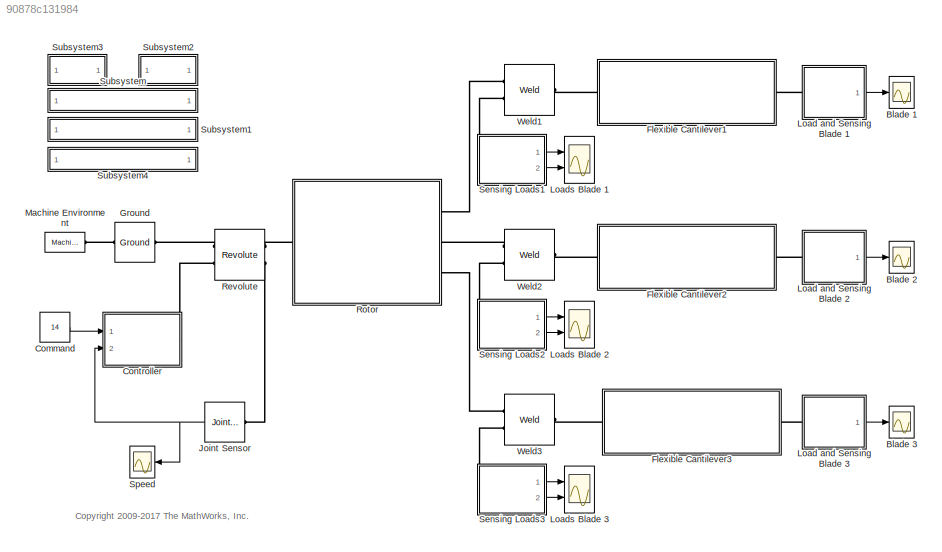
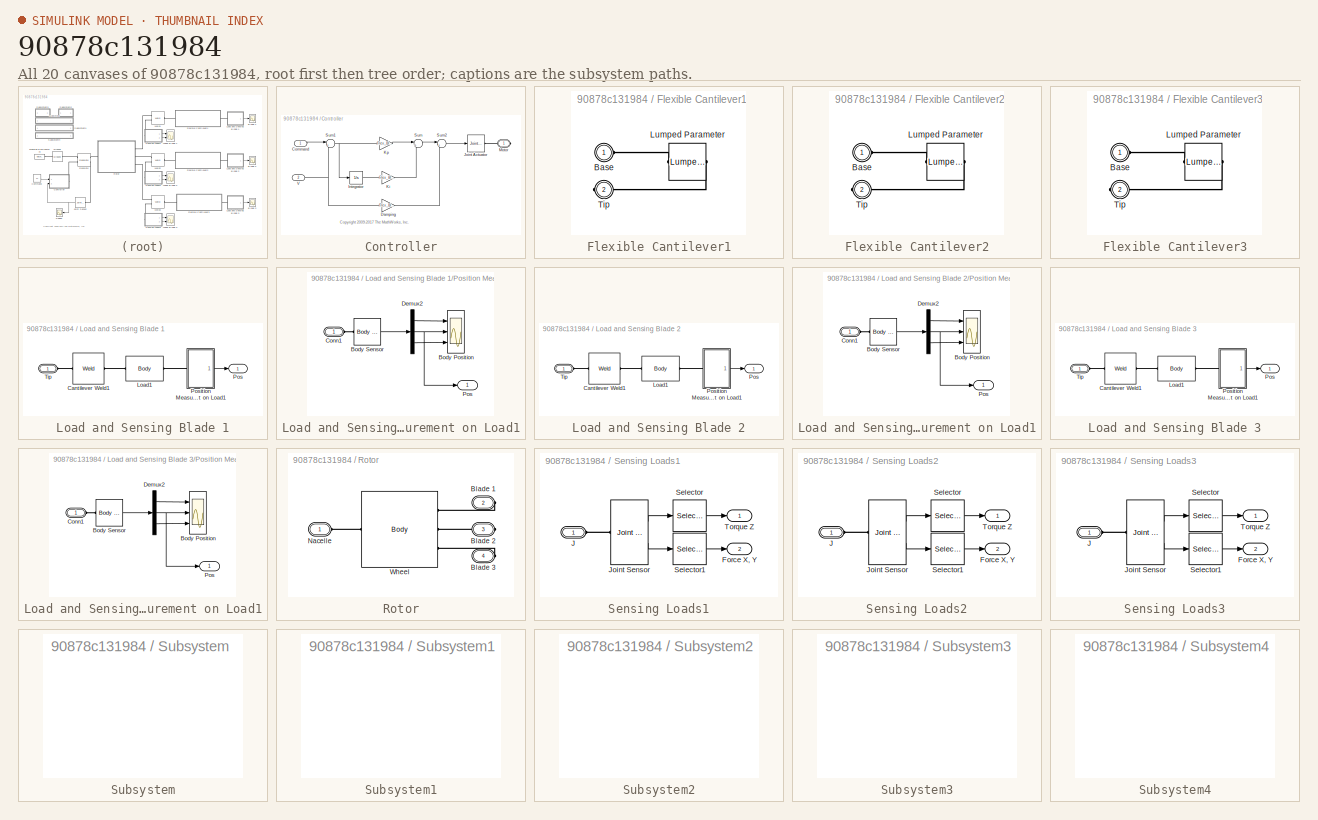
[diagram: thumbnail index - all 20 canvases of the model, root first then tree order]
MODEL slx_90878c131984
KIND model
CONFIG AbsTol = auto
CONFIG EnableMultiTasking = on
CONFIG FixedStep = auto
CONFIG InitFcn = cantilever1=cantilever_aluminum;\nload1.mass = 20 ; %kg\nload1.inertia = eye(3) ; % assume point mass\nload2=load1;\nload2.angle = 35 * pi / 180;
CONFIG MaxStep = auto
CONFIG MinStep = auto
CONFIG PostLoadFcn = loadMass = 20; %kg
CONFIG PreLoadFcn = load ss_cantilever_pva.mat\nwarning('off','Simulink:SL_SaveWithParameterizedLinks_Warning');\n\n
CONFIG RelTol = 1e-5
CONFIG SampleTimeConstraint = Unconstrained
CONFIG Solver = ode15s
CONFIG SolverName = ode15s
CONFIG StartTime = 0.0
CONFIG StopTime = 10
BLOCK [Scope] Blade 1
  Floating = off
  NumInputPorts = 1
  Ports = [1]
  ScopeSpecificationString = C++SS(StrPVP('Location','[15, 605, 507, 859]'),StrPVP('Open','off'),StrPVP('ZoomMode','xonly'),MxPVP('AxesTitles',54,'struct(''axes1'',''%<SignalLabel>'')'),StrPVP('TimeRange','10'),StrPVP('YMin','-0.6'),StrPVP('YMax','0.6'),StrPVP('SaveToWorkspace','on'),StrPVP('SaveName','Flex_Beam_Tip_DATA1'),StrPVP('DataFormat','StructureWithTime'),StrPVP('LimitDataPoints','off'),StrPVP('BlockParamSampleTime',...<+464ch>
BLOCK [Scope] Blade 2
  Floating = off
  NumInputPorts = 1
  Ports = [1]
  ScopeSpecificationString = C++SS(StrPVP('Location','[15, 605, 507, 859]'),StrPVP('Open','off'),StrPVP('ZoomMode','xonly'),MxPVP('AxesTitles',54,'struct(''axes1'',''%<SignalLabel>'')'),StrPVP('TimeRange','10'),StrPVP('YMin','-0.6'),StrPVP('YMax','0.6'),StrPVP('SaveToWorkspace','on'),StrPVP('SaveName','Flex_Beam_Tip_DATA'),StrPVP('DataFormat','StructureWithTime'),StrPVP('LimitDataPoints','off'),StrPVP('BlockParamSampleTime','...<+463ch>
BLOCK [Scope] Blade 3
  Floating = off
  NumInputPorts = 1
  Ports = [1]
  ScopeSpecificationString = C++SS(StrPVP('Location','[15, 605, 507, 859]'),StrPVP('Open','off'),StrPVP('ZoomMode','xonly'),MxPVP('AxesTitles',54,'struct(''axes1'',''%<SignalLabel>'')'),StrPVP('TimeRange','10'),StrPVP('YMin','-0.6'),StrPVP('YMax','0.6'),StrPVP('SaveToWorkspace','on'),StrPVP('SaveName','Flex_Beam_Tip_DATA2'),StrPVP('DataFormat','StructureWithTime'),StrPVP('LimitDataPoints','off'),StrPVP('BlockParamSampleTime',...<+464ch>
BLOCK [Constant] Command
  Value = 14
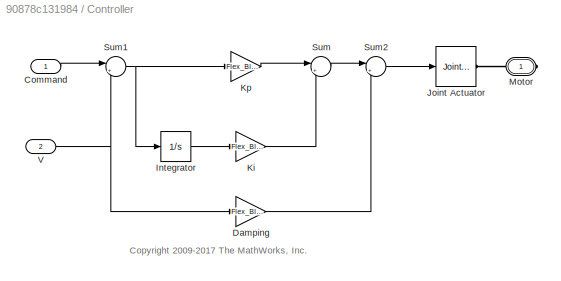
BLOCK [SubSystem] Controller
  Ports = [2, 0, 0, 0, 0, 0, 1]
  RequestExecContextInheritance = off
BLOCK [Inport] Controller/Command
  IconDisplay = Port number
BLOCK [Gain] Controller/Damping
  Gain = Flex_Blade.Damping
  OutDataTypeStr = Inherit: Inherit via internal rule
  ParamDataTypeStr = Inherit: Inherit via internal rule
  SaturateOnIntegerOverflow = off
BLOCK [Integrator] Controller/Integrator
  Ports = [1, 1]
BLOCK [Reference] Controller/Joint Actuator  REF=mblibv1/Sensors & 
Actuators/Joint Actuator
  Ports = [1, 0, 0, 0, 0, 0, 1]
  SourceBlock = mblibv1/Sensors & \nActuators/Joint Actuator
  SourceProductBaseCode = MS
  SourceProductName = Simscape Multibody
  SourceType = Joint Actuator
BLOCK [Gain] Controller/Ki
  Gain = Flex_Blade.Ki
  OutDataTypeStr = Inherit: Inherit via internal rule
  ParamDataTypeStr = Inherit: Inherit via internal rule
  SaturateOnIntegerOverflow = off
BLOCK [Gain] Controller/Kp
  Gain = Flex_Blade.Kp
  OutDataTypeStr = Inherit: Inherit via internal rule
  ParamDataTypeStr = Inherit: Inherit via internal rule
  SaturateOnIntegerOverflow = off
BLOCK [PMIOPort] Controller/Motor
  Side = Right
  Tag = PMCPort
BLOCK [Sum] Controller/Sum
  IconShape = round
  InputSameDT = off
  Inputs = |++
  OutDataTypeStr = Inherit: Inherit via internal rule
  Ports = [2, 1]
  SaturateOnIntegerOverflow = off
BLOCK [Sum] Controller/Sum1
  IconShape = round
  InputSameDT = off
  Inputs = |+-
  OutDataTypeStr = Inherit: Inherit via internal rule
  Ports = [2, 1]
  SaturateOnIntegerOverflow = off
BLOCK [Sum] Controller/Sum2
  IconShape = round
  InputSameDT = off
  Inputs = |+-
  OutDataTypeStr = Inherit: Inherit via internal rule
  Ports = [2, 1]
  SaturateOnIntegerOverflow = off
BLOCK [Inport] Controller/V
  IconDisplay = Port number
  Port = 2
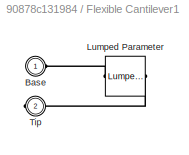
BLOCK [SubSystem] Flexible Cantilever1
  AttributesFormatString = %<BlockChoice>
  BlockChoice = Lumped Parameter
  MemberBlocks = FEA Modes,Lumped Parameter
  Ports = [0, 0, 0, 0, 0, 1, 1]
  RequestExecContextInheritance = off
  TemplateBlock = Flex_Cantilever_Lib/Flexible Cantilever
BLOCK [PMIOPort] Flexible Cantilever1/Base
  Side = Left
BLOCK [Reference] Flexible Cantilever1/Lumped Parameter  REF=Flex_Cantilever_Lib/Lumped Parameter
  Ports = [0, 0, 0, 0, 0, 1, 1]
  SourceBlock = Flex_Cantilever_Lib/Lumped Parameter
  SourceType = Unknown
BLOCK [PMIOPort] Flexible Cantilever1/Tip
  Port = 2
  Side = Right
BLOCK [SubSystem] Flexible Cantilever2
  AttributesFormatString = %<BlockChoice>
  BlockChoice = Lumped Parameter
  MemberBlocks = FEA Modes,Lumped Parameter
  Ports = [0, 0, 0, 0, 0, 1, 1]
  RequestExecContextInheritance = off
  TemplateBlock = Flex_Cantilever_Lib/Flexible Cantilever
BLOCK [PMIOPort] Flexible Cantilever2/Base
  Side = Left
BLOCK [Reference] Flexible Cantilever2/Lumped Parameter  REF=Flex_Cantilever_Lib/Lumped Parameter
  Ports = [0, 0, 0, 0, 0, 1, 1]
  SourceBlock = Flex_Cantilever_Lib/Lumped Parameter
  SourceType = Unknown
BLOCK [PMIOPort] Flexible Cantilever2/Tip
  Port = 2
  Side = Right
BLOCK [SubSystem] Flexible Cantilever3
  AttributesFormatString = %<BlockChoice>
  BlockChoice = Lumped Parameter
  MemberBlocks = FEA Modes,Lumped Parameter
  Ports = [0, 0, 0, 0, 0, 1, 1]
  RequestExecContextInheritance = off
  TemplateBlock = Flex_Cantilever_Lib/Flexible Cantilever
BLOCK [PMIOPort] Flexible Cantilever3/Base
  Side = Left
BLOCK [Reference] Flexible Cantilever3/Lumped Parameter  REF=Flex_Cantilever_Lib/Lumped Parameter
  Ports = [0, 0, 0, 0, 0, 1, 1]
  SourceBlock = Flex_Cantilever_Lib/Lumped Parameter
  SourceType = Unknown
BLOCK [PMIOPort] Flexible Cantilever3/Tip
  Port = 2
  Side = Right
BLOCK [Reference] Ground  REF=mblibv1/Bodies/Ground
  Ports = [0, 0, 0, 0, 0, 1, 1]
  SourceBlock = mblibv1/Bodies/Ground
  SourceProductBaseCode = MS
  SourceProductName = Simscape Multibody
  SourceType = Ground
  UserDataPersistent = on
BLOCK [Reference] Joint Sensor  REF=mblibv1/Sensors & 
Actuators/Joint Sensor
  Ports = [0, 1, 0, 0, 0, 1]
  SourceBlock = mblibv1/Sensors & \nActuators/Joint Sensor
  SourceProductBaseCode = MS
  SourceProductName = Simscape Multibody
  SourceType = Joint Sensor
BLOCK [SubSystem] Load and Sensing Blade 1
  Ports = [0, 1, 0, 0, 0, 1]
  RequestExecContextInheritance = off
BLOCK [Reference] Load and Sensing Blade 1/Cantilever Weld1  REF=mblibv1/Joints/Weld
  Ports = [0, 0, 0, 0, 0, 1, 1]
  SourceBlock = mblibv1/Joints/Weld
  SourceProductBaseCode = MS
  SourceProductName = Simscape Multibody
  SourceType = Weld
BLOCK [Reference] Load and Sensing Blade 1/Load1  REF=mblibv1/Bodies/Body
  Ports = [0, 0, 0, 0, 0, 1, 1]
  SourceBlock = mblibv1/Bodies/Body
  SourceProductBaseCode = MS
  SourceProductName = Simscape Multibody
  SourceType = Body
BLOCK [Outport] Load and Sensing Blade 1/Pos
  IconDisplay = Port number
BLOCK [SubSystem] Load and Sensing Blade 1/Position Measurement on Load1
  Ports = [0, 1, 0, 0, 0, 1]
  RequestExecContextInheritance = off
BLOCK [Scope] Load and Sensing Blade 1/Position Measurement on Load1/Body Position
  Floating = off
  NumInputPorts = 3
  Ports = [3]
  ScopeSpecificationString = C++SS(StrPVP('Location','[6, 50, 1020, 709]'),StrPVP('Open','off'),StrPVP('ZoomMode','xonly'),MxPVP('AxesTitles',54,'struct(''axes1'',''%<SignalLabel>'',''axes2'',''%<SignalLabel>'',''axes3'',''%<SignalLabel>'')'),StrPVP('TimeRange','0.3'),StrPVP('YMin','0.599997~-0.0065~-1'),StrPVP('YMax','0.6~0~1'),StrPVP('SaveName','ScopeData2'),StrPVP('DataFormat','StructureWithTime'),StrPVP('LimitDataPoints',...<+501ch>  <repeated x3 — deduplicated; at blocks: Body Position>
BLOCK [Reference] Load and Sensing Blade 1/Position Measurement on Load1/Body Sensor  REF=mblibv1/Sensors & 
Actuators/Body Sensor
  Ports = [0, 1, 0, 0, 0, 1]
  SourceBlock = mblibv1/Sensors & \nActuators/Body Sensor
  SourceProductBaseCode = MS
  SourceProductName = Simscape Multibody
  SourceType = Body Sensor
BLOCK [PMIOPort] Load and Sensing Blade 1/Position Measurement on Load1/Conn1
  Side = Left
BLOCK [Demux] Load and Sensing Blade 1/Position Measurement on Load1/Demux2
  DisplayOption = bar
  Outputs = 3
  Ports = [1, 3]
BLOCK [Outport] Load and Sensing Blade 1/Position Measurement on Load1/Pos
  IconDisplay = Port number
BLOCK [PMIOPort] Load and Sensing Blade 1/Tip
  Side = Left
BLOCK [SubSystem] Load and Sensing Blade 2
  Ports = [0, 1, 0, 0, 0, 1]
  RequestExecContextInheritance = off
BLOCK [Reference] Load and Sensing Blade 2/Cantilever Weld1  REF=mblibv1/Joints/Weld
  Ports = [0, 0, 0, 0, 0, 1, 1]
  SourceBlock = mblibv1/Joints/Weld
  SourceProductBaseCode = MS
  SourceProductName = Simscape Multibody
  SourceType = Weld
BLOCK [Reference] Load and Sensing Blade 2/Load1  REF=mblibv1/Bodies/Body
  Ports = [0, 0, 0, 0, 0, 1, 1]
  SourceBlock = mblibv1/Bodies/Body
  SourceProductBaseCode = MS
  SourceProductName = Simscape Multibody
  SourceType = Body
BLOCK [Outport] Load and Sensing Blade 2/Pos
  IconDisplay = Port number
BLOCK [SubSystem] Load and Sensing Blade 2/Position Measurement on Load1
  Ports = [0, 1, 0, 0, 0, 1]
  RequestExecContextInheritance = off
BLOCK [Scope] Load and Sensing Blade 2/Position Measurement on Load1/Body Position
  Floating = off
  NumInputPorts = 3
  Ports = [3]
BLOCK [Reference] Load and Sensing Blade 2/Position Measurement on Load1/Body Sensor  REF=mblibv1/Sensors & 
Actuators/Body Sensor
  Ports = [0, 1, 0, 0, 0, 1]
  SourceBlock = mblibv1/Sensors & \nActuators/Body Sensor
  SourceProductBaseCode = MS
  SourceProductName = Simscape Multibody
  SourceType = Body Sensor
BLOCK [PMIOPort] Load and Sensing Blade 2/Position Measurement on Load1/Conn1
  Side = Left
BLOCK [Demux] Load and Sensing Blade 2/Position Measurement on Load1/Demux2
  DisplayOption = bar
  Outputs = 3
  Ports = [1, 3]
BLOCK [Outport] Load and Sensing Blade 2/Position Measurement on Load1/Pos
  IconDisplay = Port number
BLOCK [PMIOPort] Load and Sensing Blade 2/Tip
  Side = Left
BLOCK [SubSystem] Load and Sensing Blade 3
  Ports = [0, 1, 0, 0, 0, 1]
  RequestExecContextInheritance = off
BLOCK [Reference] Load and Sensing Blade 3/Cantilever Weld1  REF=mblibv1/Joints/Weld
  Ports = [0, 0, 0, 0, 0, 1, 1]
  SourceBlock = mblibv1/Joints/Weld
  SourceProductBaseCode = MS
  SourceProductName = Simscape Multibody
  SourceType = Weld
BLOCK [Reference] Load and Sensing Blade 3/Load1  REF=mblibv1/Bodies/Body
  Ports = [0, 0, 0, 0, 0, 1, 1]
  SourceBlock = mblibv1/Bodies/Body
  SourceProductBaseCode = MS
  SourceProductName = Simscape Multibody
  SourceType = Body
BLOCK [Outport] Load and Sensing Blade 3/Pos
  IconDisplay = Port number
BLOCK [SubSystem] Load and Sensing Blade 3/Position Measurement on Load1
  Ports = [0, 1, 0, 0, 0, 1]
  RequestExecContextInheritance = off
BLOCK [Scope] Load and Sensing Blade 3/Position Measurement on Load1/Body Position
  Floating = off
  NumInputPorts = 3
  Ports = [3]
BLOCK [Reference] Load and Sensing Blade 3/Position Measurement on Load1/Body Sensor  REF=mblibv1/Sensors & 
Actuators/Body Sensor
  Ports = [0, 1, 0, 0, 0, 1]
  SourceBlock = mblibv1/Sensors & \nActuators/Body Sensor
  SourceProductBaseCode = MS
  SourceProductName = Simscape Multibody
  SourceType = Body Sensor
BLOCK [PMIOPort] Load and Sensing Blade 3/Position Measurement on Load1/Conn1
  Side = Left
BLOCK [Demux] Load and Sensing Blade 3/Position Measurement on Load1/Demux2
  DisplayOption = bar
  Outputs = 3
  Ports = [1, 3]
BLOCK [Outport] Load and Sensing Blade 3/Position Measurement on Load1/Pos
  IconDisplay = Port number
BLOCK [PMIOPort] Load and Sensing Blade 3/Tip
  Side = Left
BLOCK [Scope] Loads Blade 1
  Floating = off
  NumInputPorts = 2
  Ports = [2]
  ScopeSpecificationString = Simulink.scopes.TimeScopeBlockCfg('CurrentConfiguration', extmgr.ConfigurationSet(extmgr.Configuration('Core','General UI',true),extmgr.Configuration('Core','Source UI',true),extmgr.Configuration('Sources','WiredSimulink',true,'DataLogging',true,'DataLoggingVariableName','Flexible_Blade1_Load_DATA','DataLoggingSaveFormat','StructureWithTime','DataLoggingDecimation','1'),extmgr.Configuration('Visua...<+2417ch>
BLOCK [Scope] Loads Blade 2
  Floating = off
  NumInputPorts = 2
  Ports = [2]
  ScopeSpecificationString = C++SS(StrPVP('Location','[392, 603, 716, 859]'),StrPVP('Open','off'),StrPVP('ZoomMode','yonly'),MxPVP('AxesTitles',54,'struct(''axes1'',''%<SignalLabel>'',''axes2'',''%<SignalLabel>'')'),StrPVP('YMin','-400~-500'),StrPVP('YMax','200~200'),StrPVP('SaveName','ScopeData1'),StrPVP('DataFormat','StructureWithTime'),StrPVP('BlockParamSampleTime','0'),StrPVP('LimitDataPoints','on'),StrPVP('DataLoggingDec...<+437ch>
BLOCK [Scope] Loads Blade 3
  Floating = off
  NumInputPorts = 2
  Ports = [2]
  ScopeSpecificationString = C++SS(StrPVP('Location','[392, 603, 716, 859]'),StrPVP('Open','off'),StrPVP('ZoomMode','yonly'),MxPVP('AxesTitles',54,'struct(''axes1'',''%<SignalLabel>'',''axes2'',''%<SignalLabel>'')'),StrPVP('YMin','-400~-500'),StrPVP('YMax','200~200'),StrPVP('SaveName','ScopeData3'),StrPVP('DataFormat','StructureWithTime'),StrPVP('BlockParamSampleTime','0'),StrPVP('LimitDataPoints','on'),StrPVP('DataLoggingDec...<+437ch>
BLOCK [Reference] Machine Environment  REF=mblibv1/Bodies/Machine
Environment
  Ports = [0, 0, 0, 0, 0, 0, 1]
  SourceBlock = mblibv1/Bodies/Machine\nEnvironment
  SourceProductBaseCode = MS
  SourceProductName = Simscape Multibody
  SourceType = Machine Environment
  Tag = Factory ground
BLOCK [Reference] Revolute  REF=mblibv1/Joints/Revolute
  Ports = [0, 0, 0, 0, 0, 2, 2]
  SourceBlock = mblibv1/Joints/Revolute
  SourceProductBaseCode = MS
  SourceProductName = Simscape Multibody
  SourceType = Revolute
BLOCK [SubSystem] Rotor
  Ports = [0, 0, 0, 0, 0, 1, 3]
  RequestExecContextInheritance = off
BLOCK [PMIOPort] Rotor/ Nacelle
  Side = Left
  Tag = PMCPort
BLOCK [PMIOPort] Rotor/Blade 1
  Port = 2
  Side = Right
  Tag = PMCPort
BLOCK [PMIOPort] Rotor/Blade 2
  Port = 3
  Side = Right
  Tag = PMCPort
BLOCK [PMIOPort] Rotor/Blade 3
  Port = 4
  Side = Right
  Tag = PMCPort
BLOCK [Reference] Rotor/Wheel  REF=mblibv1/Bodies/Body
  Ports = [0, 0, 0, 0, 0, 1, 3]
  SourceBlock = mblibv1/Bodies/Body
  SourceProductBaseCode = MS
  SourceProductName = Simscape Multibody
  SourceType = Body
BLOCK [SubSystem] Sensing Loads1
  Ports = [0, 2, 0, 0, 0, 1]
  RequestExecContextInheritance = off
BLOCK [Outport] Sensing Loads1/Force X, Y
  IconDisplay = Port number
  Port = 2
BLOCK [PMIOPort] Sensing Loads1/J
  Side = Left
BLOCK [Reference] Sensing Loads1/Joint Sensor  REF=mblibv1/Sensors & 
Actuators/Joint Sensor
  Ports = [0, 2, 0, 0, 0, 1]
  SourceBlock = mblibv1/Sensors & \nActuators/Joint Sensor
  SourceProductBaseCode = MS
  SourceProductName = Simscape Multibody
  SourceType = Joint Sensor
BLOCK [Selector] Sensing Loads1/Selector
  IndexOptions = Index vector (dialog)
  Indices = [3]
  InputPortWidth = 3
  OutputSizes = 1
  Ports = [1, 1]
BLOCK [Selector] Sensing Loads1/Selector1
  IndexOptions = Index vector (dialog)
  Indices = [1 2]
  InputPortWidth = 3
  OutputSizes = 1
  Ports = [1, 1]
BLOCK [Outport] Sensing Loads1/Torque Z
  IconDisplay = Port number
BLOCK [SubSystem] Sensing Loads2
  Ports = [0, 2, 0, 0, 0, 1]
  RequestExecContextInheritance = off
BLOCK [Outport] Sensing Loads2/Force X, Y
  IconDisplay = Port number
  Port = 2
BLOCK [PMIOPort] Sensing Loads2/J
  Side = Left
BLOCK [Reference] Sensing Loads2/Joint Sensor  REF=mblibv1/Sensors & 
Actuators/Joint Sensor
  Ports = [0, 2, 0, 0, 0, 1]
  SourceBlock = mblibv1/Sensors & \nActuators/Joint Sensor
  SourceProductBaseCode = MS
  SourceProductName = Simscape Multibody
  SourceType = Joint Sensor
BLOCK [Selector] Sensing Loads2/Selector
  IndexOptions = Index vector (dialog)
  Indices = [3]
  InputPortWidth = 3
  OutputSizes = 1
  Ports = [1, 1]
BLOCK [Selector] Sensing Loads2/Selector1
  IndexOptions = Index vector (dialog)
  Indices = [1 2]
  InputPortWidth = 3
  OutputSizes = 1
  Ports = [1, 1]
BLOCK [Outport] Sensing Loads2/Torque Z
  IconDisplay = Port number
BLOCK [SubSystem] Sensing Loads3
  Ports = [0, 2, 0, 0, 0, 1]
  RequestExecContextInheritance = off
BLOCK [Outport] Sensing Loads3/Force X, Y
  IconDisplay = Port number
  Port = 2
BLOCK [PMIOPort] Sensing Loads3/J
  Side = Left
BLOCK [Reference] Sensing Loads3/Joint Sensor  REF=mblibv1/Sensors & 
Actuators/Joint Sensor
  Ports = [0, 2, 0, 0, 0, 1]
  SourceBlock = mblibv1/Sensors & \nActuators/Joint Sensor
  SourceProductBaseCode = MS
  SourceProductName = Simscape Multibody
  SourceType = Joint Sensor
BLOCK [Selector] Sensing Loads3/Selector
  IndexOptions = Index vector (dialog)
  Indices = [3]
  InputPortWidth = 3
  OutputSizes = 1
  Ports = [1, 1]
BLOCK [Selector] Sensing Loads3/Selector1
  IndexOptions = Index vector (dialog)
  Indices = [1 2]
  InputPortWidth = 3
  OutputSizes = 1
  Ports = [1, 1]
BLOCK [Outport] Sensing Loads3/Torque Z
  IconDisplay = Port number
BLOCK [Scope] Speed
  Floating = off
  NumInputPorts = 1
  Ports = [1]
  ScopeSpecificationString = Simulink.scopes.TimeScopeBlockCfg('CurrentConfiguration', extmgr.ConfigurationSet(extmgr.Configuration('Core','General UI',true),extmgr.Configuration('Core','Source UI',true),extmgr.Configuration('Sources','WiredSimulink',true,'DataLogging',true,'DataLoggingVariableName','Flexible_Blade_Rotor_Speed_DATA','DataLoggingSaveFormat','StructureWithTime','DataLoggingDecimation','1'),extmgr.Configuration(...<+1693ch>
BLOCK [SubSystem] Subsystem
  OpenFcn = Change_Flex_Body_To_FEA_Approach;
  Ports = []
  RequestExecContextInheritance = off
BLOCK [SubSystem] Subsystem1
  OpenFcn = Change_Flex_Body_To_Lumped_Parameter;
  Ports = []
  RequestExecContextInheritance = off
BLOCK [SubSystem] Subsystem2
  OpenFcn = Temp_ENVHa= get_param(find_system(gcs,'LookUnderMasks','all','FollowLinks','on','ClassName','Environment'),'handle');\n                                                                                                                     \nset_param(Temp_ENVHa{1},'VisualizeMachine','off');                                                                   \n                                              ...<+231ch>
  Ports = []
  RequestExecContextInheritance = off
BLOCK [SubSystem] Subsystem3
  OpenFcn = Temp_ENVHa= get_param(find_system(gcs,'LookUnderMasks','all','FollowLinks','on','ClassName','Environment'),'handle');\n                                                                                                                     \nset_param(Temp_ENVHa{1},'VisualizeMachine','on');                                                                    \nclear Temp_ENVHa;                             ...<+230ch>
  Ports = []
  RequestExecContextInheritance = off
BLOCK [SubSystem] Subsystem4
  OpenFcn = Flexible_Blades_Slide_Prep;
  Ports = []
  RequestExecContextInheritance = off
BLOCK [Reference] Weld1  REF=mblibv1/Joints/Weld
  Ports = [0, 0, 0, 0, 0, 2, 1]
  SourceBlock = mblibv1/Joints/Weld
  SourceProductBaseCode = MS
  SourceProductName = Simscape Multibody
  SourceType = Weld
BLOCK [Reference] Weld2  REF=mblibv1/Joints/Weld
  Ports = [0, 0, 0, 0, 0, 2, 1]
  SourceBlock = mblibv1/Joints/Weld
  SourceProductBaseCode = MS
  SourceProductName = Simscape Multibody
  SourceType = Weld
BLOCK [Reference] Weld3  REF=mblibv1/Joints/Weld
  Ports = [0, 0, 0, 0, 0, 2, 1]
  SourceBlock = mblibv1/Joints/Weld
  SourceProductBaseCode = MS
  SourceProductName = Simscape Multibody
  SourceType = Weld
ANNOTATION (root): <copyright redacted>
ANNOTATION Controller: <copyright redacted>
LINE Command:1 -> Controller:1
LINE Controller/Command:1 -> Controller/Sum1:1
LINE Controller/Damping:1 -> Controller/Sum2:2
LINE Controller/Integrator:1 -> Controller/Ki:1
LINE Controller/Ki:1 -> Controller/Sum:2
LINE Controller/Kp:1 -> Controller/Sum:1
NET Controller/Sum1:1 -> Controller/Integrator:1, Controller/Kp:1
LINE Controller/Sum2:1 -> Controller/Joint Actuator:1
LINE Controller/Sum:1 -> Controller/Sum2:1
NET Controller/V:1 -> Controller/Damping:1, Controller/Sum1:2
NET Joint Sensor:1 -> Controller:2, Speed:1
LINE Load and Sensing Blade 1/Position Measurement on Load1/Body Sensor:1 -> Load and Sensing Blade 1/Position Measurement on Load1/Demux2:1
LINE Load and Sensing Blade 1/Position Measurement on Load1/Demux2:1 -> Load and Sensing Blade 1/Position Measurement on Load1/Body Position:1
NET Load and Sensing Blade 1/Position Measurement on Load1/Demux2:2 -> Load and Sensing Blade 1/Position Measurement on Load1/Body Position:2, Load and Sensing Blade 1/Position Measurement on Load1/Pos:1
LINE Load and Sensing Blade 1/Position Measurement on Load1/Demux2:3 -> Load and Sensing Blade 1/Position Measurement on Load1/Body Position:3
LINE Load and Sensing Blade 1/Position Measurement on Load1:1 -> Load and Sensing Blade 1/Pos:1
LINE Load and Sensing Blade 1:1 -> Blade 1:1
LINE Load and Sensing Blade 2/Position Measurement on Load1/Body Sensor:1 -> Load and Sensing Blade 2/Position Measurement on Load1/Demux2:1
LINE Load and Sensing Blade 2/Position Measurement on Load1/Demux2:1 -> Load and Sensing Blade 2/Position Measurement on Load1/Body Position:1
NET Load and Sensing Blade 2/Position Measurement on Load1/Demux2:2 -> Load and Sensing Blade 2/Position Measurement on Load1/Body Position:2, Load and Sensing Blade 2/Position Measurement on Load1/Pos:1
LINE Load and Sensing Blade 2/Position Measurement on Load1/Demux2:3 -> Load and Sensing Blade 2/Position Measurement on Load1/Body Position:3
LINE Load and Sensing Blade 2/Position Measurement on Load1:1 -> Load and Sensing Blade 2/Pos:1
LINE Load and Sensing Blade 2:1 -> Blade 2:1
LINE Load and Sensing Blade 3/Position Measurement on Load1/Body Sensor:1 -> Load and Sensing Blade 3/Position Measurement on Load1/Demux2:1
LINE Load and Sensing Blade 3/Position Measurement on Load1/Demux2:1 -> Load and Sensing Blade 3/Position Measurement on Load1/Body Position:1
NET Load and Sensing Blade 3/Position Measurement on Load1/Demux2:2 -> Load and Sensing Blade 3/Position Measurement on Load1/Body Position:2, Load and Sensing Blade 3/Position Measurement on Load1/Pos:1
LINE Load and Sensing Blade 3/Position Measurement on Load1/Demux2:3 -> Load and Sensing Blade 3/Position Measurement on Load1/Body Position:3
LINE Load and Sensing Blade 3/Position Measurement on Load1:1 -> Load and Sensing Blade 3/Pos:1
LINE Load and Sensing Blade 3:1 -> Blade 3:1
LINE Sensing Loads1/Joint Sensor:1 -> Sensing Loads1/Selector:1
LINE Sensing Loads1/Joint Sensor:2 -> Sensing Loads1/Selector1:1
LINE Sensing Loads1/Selector1:1 -> Sensing Loads1/Force X, Y:1
LINE Sensing Loads1/Selector:1 -> Sensing Loads1/Torque Z:1
LINE Sensing Loads1:1 -> Loads Blade 1:1
LINE Sensing Loads1:2 -> Loads Blade 1:2
LINE Sensing Loads2/Joint Sensor:1 -> Sensing Loads2/Selector:1
LINE Sensing Loads2/Joint Sensor:2 -> Sensing Loads2/Selector1:1
LINE Sensing Loads2/Selector1:1 -> Sensing Loads2/Force X, Y:1
LINE Sensing Loads2/Selector:1 -> Sensing Loads2/Torque Z:1
LINE Sensing Loads2:1 -> Loads Blade 2:1
LINE Sensing Loads2:2 -> Loads Blade 2:2
LINE Sensing Loads3/Joint Sensor:1 -> Sensing Loads3/Selector:1
LINE Sensing Loads3/Joint Sensor:2 -> Sensing Loads3/Selector1:1
LINE Sensing Loads3/Selector1:1 -> Sensing Loads3/Force X, Y:1
LINE Sensing Loads3/Selector:1 -> Sensing Loads3/Torque Z:1
LINE Sensing Loads3:1 -> Loads Blade 3:1
LINE Sensing Loads3:2 -> Loads Blade 3:2
PLINE Controller/Joint Actuator:RConn1 -- Controller/Motor:RConn1
PLINE Controller:RConn1 -- Revolute:LConn2
PLINE Flexible Cantilever1:LConn1 -- Weld1:RConn1
PLINE Flexible Cantilever1:RConn1 -- Load and Sensing Blade 1:LConn1
PLINE Flexible Cantilever2:LConn1 -- Weld2:RConn1
PLINE Flexible Cantilever2:RConn1 -- Load and Sensing Blade 2:LConn1
PLINE Flexible Cantilever3:LConn1 -- Weld3:RConn1
PLINE Flexible Cantilever3:RConn1 -- Load and Sensing Blade 3:LConn1
PLINE Ground:LConn1 -- Machine Environment:RConn1
PLINE Ground:RConn1 -- Revolute:LConn1
PLINE Joint Sensor:LConn1 -- Revolute:RConn2
PLINE Load and Sensing Blade 1/Cantilever Weld1:LConn1 -- Load and Sensing Blade 1/Load1:LConn1
PLINE Load and Sensing Blade 1/Cantilever Weld1:RConn1 -- Load and Sensing Blade 1/Tip:RConn1
PLINE Load and Sensing Blade 1/Load1:RConn1 -- Load and Sensing Blade 1/Position Measurement on Load1:LConn1
PLINE Load and Sensing Blade 1/Position Measurement on Load1/Body Sensor:LConn1 -- Load and Sensing Blade 1/Position Measurement on Load1/Conn1:RConn1
PLINE Load and Sensing Blade 2/Cantilever Weld1:LConn1 -- Load and Sensing Blade 2/Load1:LConn1
PLINE Load and Sensing Blade 2/Cantilever Weld1:RConn1 -- Load and Sensing Blade 2/Tip:RConn1
PLINE Load and Sensing Blade 2/Load1:RConn1 -- Load and Sensing Blade 2/Position Measurement on Load1:LConn1
PLINE Load and Sensing Blade 2/Position Measurement on Load1/Body Sensor:LConn1 -- Load and Sensing Blade 2/Position Measurement on Load1/Conn1:RConn1
PLINE Load and Sensing Blade 3/Cantilever Weld1:LConn1 -- Load and Sensing Blade 3/Load1:LConn1
PLINE Load and Sensing Blade 3/Cantilever Weld1:RConn1 -- Load and Sensing Blade 3/Tip:RConn1
PLINE Load and Sensing Blade 3/Load1:RConn1 -- Load and Sensing Blade 3/Position Measurement on Load1:LConn1
PLINE Load and Sensing Blade 3/Position Measurement on Load1/Body Sensor:LConn1 -- Load and Sensing Blade 3/Position Measurement on Load1/Conn1:RConn1
PLINE Revolute:RConn1 -- Rotor:LConn1
PLINE Rotor/ Nacelle:RConn1 -- Rotor/Wheel:LConn1
PLINE Rotor/Blade 1:RConn1 -- Rotor/Wheel:RConn1
PLINE Rotor/Blade 2:RConn1 -- Rotor/Wheel:RConn2
PLINE Rotor/Blade 3:RConn1 -- Rotor/Wheel:RConn3
PLINE Rotor:RConn1 -- Weld1:LConn1
PLINE Rotor:RConn2 -- Weld2:LConn1
PLINE Rotor:RConn3 -- Weld3:LConn1
PLINE Sensing Loads1/J:RConn1 -- Sensing Loads1/Joint Sensor:LConn1
PLINE Sensing Loads1:LConn1 -- Weld1:LConn2
PLINE Sensing Loads2/J:RConn1 -- Sensing Loads2/Joint Sensor:LConn1
PLINE Sensing Loads2:LConn1 -- Weld2:LConn2
PLINE Sensing Loads3/J:RConn1 -- Sensing Loads3/Joint Sensor:LConn1
PLINE Sensing Loads3:LConn1 -- Weld3:LConn2
note: NET lines group one-source signal fan-out (src -> all destinations, sorted); 1:1 wires keep LINE
